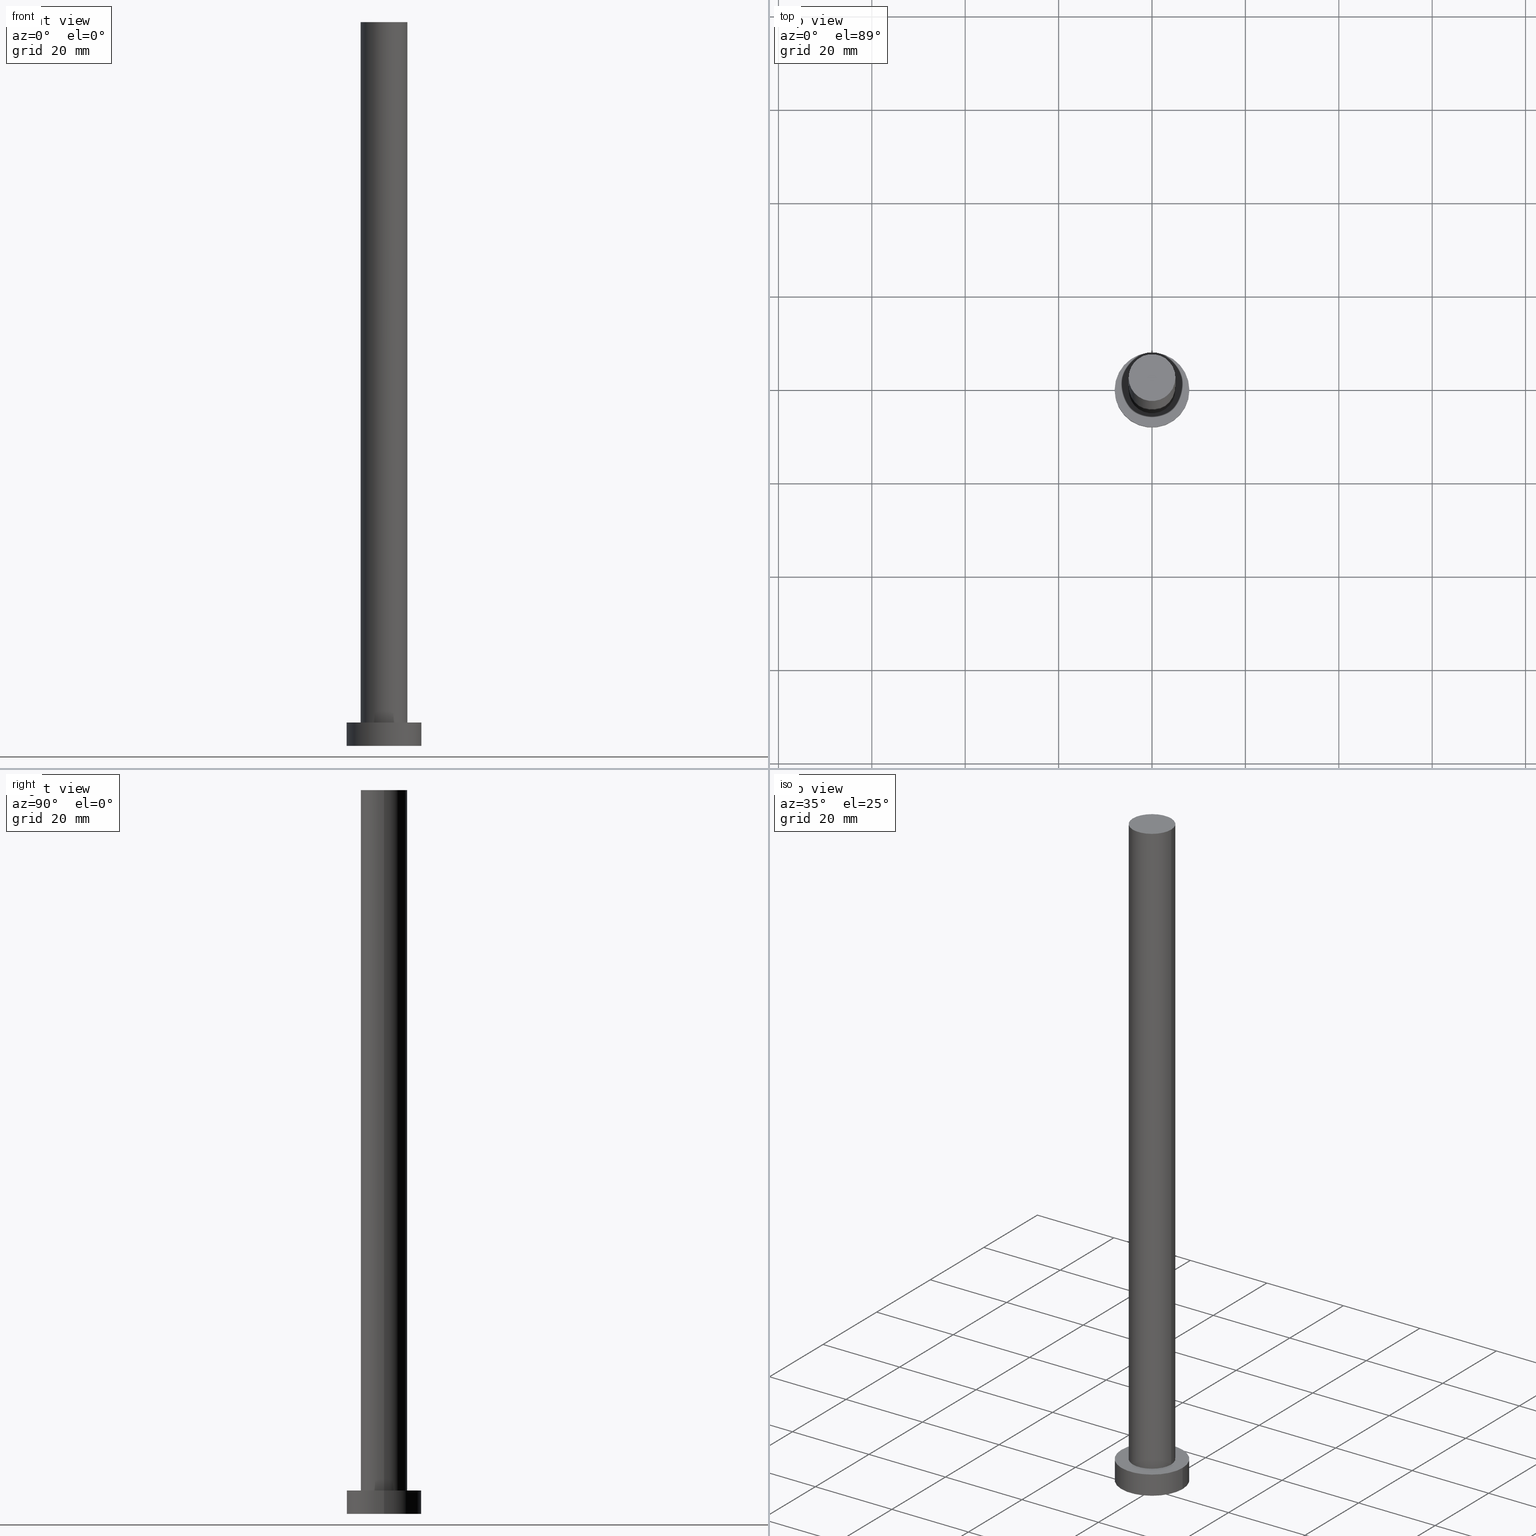
[diagram: canonical four-view strip — front | top / right | iso, engineering-drawing reading convention]
A machine part, canonical four-view strip (front | top / right | iso — engineering-drawing reading convention). The complete STEP part file that produces these views, byte-faithful:
ISO-10303-21;
HEADER;
FILE_DESCRIPTION (( 'STEP AP203' ),
    '1' );
FILE_NAME ('e26a.STEP',
    '2024-01-18T07:30:41',
    ( '' ),
    ( '' ),
    'SwSTEP 2.0',
    'SolidWorks 2019',
    '' );
FILE_SCHEMA (( 'CONFIG_CONTROL_DESIGN' ));
ENDSEC;

DATA;
#1 = ORIENTED_EDGE ( 'NONE', *, *, #177, .F. ) ;
#2 = VERTEX_POINT ( 'NONE', #18 ) ;
#3 = CARTESIAN_POINT ( 'NONE',  ( -8.000000000000000000, 0.000000000000000000, 0.000000000000000000 ) ) ;
#4 = DIRECTION ( 'NONE',  ( 1.000000000000000000, 0.000000000000000000, 0.000000000000000000 ) ) ;
#5 = CARTESIAN_POINT ( 'NONE',  ( 0.000000000000000000, 0.000000000000000000, 155.0000000000000000 ) ) ;
#6 = DIRECTION ( 'NONE',  ( 0.000000000000000000, 0.000000000000000000, 1.000000000000000000 ) ) ;
#7 = ADVANCED_FACE ( 'NONE', ( #202 ), #120, .F. ) ;
#8 = CIRCLE ( 'NONE', #148, 5.000000000000000888 ) ;
#9 = ORIENTED_EDGE ( 'NONE', *, *, #184, .F. ) ;
#10 = EDGE_CURVE ( 'NONE', #235, #16, #43, .T. ) ;
#11 = DATE_AND_TIME ( #132, #77 ) ;
#12 = DATE_TIME_ROLE ( 'creation_date' ) ;
#13 = AXIS2_PLACEMENT_3D ( 'NONE', #112, #94, #181 ) ;
#14 = CARTESIAN_POINT ( 'NONE',  ( 5.000000000000000888, 6.123233995736767268E-16, 155.0000000000000000 ) ) ;
#15 = ORIENTED_EDGE ( 'NONE', *, *, #118, .F. ) ;
#16 = VERTEX_POINT ( 'NONE', #161 ) ;
#17 = AXIS2_PLACEMENT_3D ( 'NONE', #22, #6, #24 ) ;
#18 = CARTESIAN_POINT ( 'NONE',  ( -5.000000000000000888, 0.000000000000000000, 5.000000000000000000 ) ) ;
#19 = DIRECTION ( 'NONE',  ( 0.000000000000000000, 0.000000000000000000, 1.000000000000000000 ) ) ;
#20 = CARTESIAN_POINT ( 'NONE',  ( -5.000000000000000888, 0.000000000000000000, 155.0000000000000000 ) ) ;
#21 = VECTOR ( 'NONE', #167, 1000.000000000000000 ) ;
#22 = CARTESIAN_POINT ( 'NONE',  ( 0.000000000000000000, 0.000000000000000000, 5.000000000000000000 ) ) ;
#23 = EDGE_CURVE ( 'NONE', #235, #143, #218, .T. ) ;
#24 = DIRECTION ( 'NONE',  ( 1.000000000000000000, 0.000000000000000000, 0.000000000000000000 ) ) ;
#25 = CARTESIAN_POINT ( 'NONE',  ( 0.000000000000000000, 0.000000000000000000, 5.000000000000000000 ) ) ;
#26 = CARTESIAN_POINT ( 'NONE',  ( 5.000000000000000888, 6.123233995736767268E-16, 5.000000000000000000 ) ) ;
#27 = CC_DESIGN_APPROVAL ( #238, ( #38 ) ) ;
#28 = ADVANCED_BREP_SHAPE_REPRESENTATION ( 'e26a', ( #186, #152 ), #111 ) ;
#29 = PERSON_AND_ORGANIZATION_ROLE ( 'classification_officer' ) ;
#30 = ORIENTED_EDGE ( 'NONE', *, *, #196, .T. ) ;
#31 = CALENDAR_DATE ( 2024, 18, 1 ) ;
#32 = EDGE_LOOP ( 'NONE', ( #122, #137, #62, #1 ) ) ;
#33 = EDGE_CURVE ( 'NONE', #16, #235, #182, .T. ) ;
#34 = PERSON_AND_ORGANIZATION ( #141, #163 ) ;
#35 = PERSON_AND_ORGANIZATION_ROLE ( 'creator' ) ;
#36 = CARTESIAN_POINT ( 'NONE',  ( 0.000000000000000000, 0.000000000000000000, 155.0000000000000000 ) ) ;
#37 = ADVANCED_FACE ( 'NONE', ( #101 ), #176, .T. ) ;
#38 = SECURITY_CLASSIFICATION ( '', '', #193 ) ;
#39 = PLANE ( 'NONE',  #138 ) ;
#40 = ORIENTED_EDGE ( 'NONE', *, *, #92, .T. ) ;
#41 = CC_DESIGN_PERSON_AND_ORGANIZATION_ASSIGNMENT ( #136, #211, ( #96 ) ) ;
#42 = ORIENTED_EDGE ( 'NONE', *, *, #254, .T. ) ;
#43 = CIRCLE ( 'NONE', #189, 5.000000000000000888 ) ;
#44 = VERTEX_POINT ( 'NONE', #253 ) ;
#45 = CARTESIAN_POINT ( 'NONE',  ( 8.000000000000000000, 9.797174393178825657E-16, 0.000000000000000000 ) ) ;
#46 = AXIS2_PLACEMENT_3D ( 'NONE', #25, #110, #224 ) ;
#47 = FACE_OUTER_BOUND ( 'NONE', #242, .T. ) ;
#48 = DIRECTION ( 'NONE',  ( 1.000000000000000000, 0.000000000000000000, 0.000000000000000000 ) ) ;
#49 = DIRECTION ( 'NONE',  ( 1.000000000000000000, 0.000000000000000000, 0.000000000000000000 ) ) ;
#50 = SHAPE_DEFINITION_REPRESENTATION ( #172, #28 ) ;
#51 = CC_DESIGN_APPROVAL ( #207, ( #96 ) ) ;
#52 = PERSON_AND_ORGANIZATION ( #141, #163 ) ;
#53 = CALENDAR_DATE ( 2024, 18, 1 ) ;
#54 = DATE_AND_TIME ( #53, #107 ) ;
#55 = CC_DESIGN_SECURITY_CLASSIFICATION ( #38, ( #96 ) ) ;
#56 = COORDINATED_UNIVERSAL_TIME_OFFSET ( 1, 0, .AHEAD. ) ;
#57 = CC_DESIGN_PERSON_AND_ORGANIZATION_ASSIGNMENT ( #129, #168, ( #96 ) ) ;
#58 = CARTESIAN_POINT ( 'NONE',  ( 0.000000000000000000, 0.000000000000000000, 5.000000000000000000 ) ) ;
#59 = LOCAL_TIME ( 8, 30, 41.00000000000000000, #114 ) ;
#60 = LINE ( 'NONE', #20, #21 ) ;
#61 = EDGE_CURVE ( 'NONE', #214, #88, #197, .T. ) ;
#62 = ORIENTED_EDGE ( 'NONE', *, *, #61, .T. ) ;
#63 = DIRECTION ( 'NONE',  ( 1.000000000000000000, 0.000000000000000000, 0.000000000000000000 ) ) ;
#64 = CLOSED_SHELL ( 'NONE', ( #113, #252, #244, #91, #7, #37, #246 ) ) ;
#65 = CIRCLE ( 'NONE', #17, 8.000000000000000000 ) ;
#66 = ORIENTED_EDGE ( 'NONE', *, *, #23, .T. ) ;
#67 = PRODUCT_RELATED_PRODUCT_CATEGORY ( 'detail', '', ( #78 ) ) ;
#68 =( NAMED_UNIT ( * ) SI_UNIT ( $, .STERADIAN. ) SOLID_ANGLE_UNIT ( ) );
#69 = DIRECTION ( 'NONE',  ( 1.000000000000000000, 0.000000000000000000, -0.000000000000000000 ) ) ;
#70 = VECTOR ( 'NONE', #226, 1000.000000000000000 ) ;
#71 = FACE_OUTER_BOUND ( 'NONE', #212, .T. ) ;
#72 = CC_DESIGN_DATE_AND_TIME_ASSIGNMENT ( #230, #12, ( #121 ) ) ;
#73 = UNCERTAINTY_MEASURE_WITH_UNIT (LENGTH_MEASURE( 1.000000000000000082E-05 ), #188, 'distance_accuracy_value', 'NONE');
#74 = CYLINDRICAL_SURFACE ( 'NONE', #46, 8.000000000000000000 ) ;
#75 = APPROVAL_ROLE ( '' ) ;
#76 = VECTOR ( 'NONE', #180, 1000.000000000000000 ) ;
#77 = LOCAL_TIME ( 8, 30, 41.00000000000000000, #56 ) ;
#78 = PRODUCT ( 'e26a', 'e26a', '', ( #130 ) ) ;
#79 = PERSON_AND_ORGANIZATION ( #141, #163 ) ;
#80 = AXIS2_PLACEMENT_3D ( 'NONE', #239, #199, #86 ) ;
#81 = DESIGN_CONTEXT ( 'detailed design', #215, 'design' ) ;
#82 = CARTESIAN_POINT ( 'NONE',  ( 0.000000000000000000, 0.000000000000000000, 155.0000000000000000 ) ) ;
#83 = DIRECTION ( 'NONE',  ( 1.000000000000000000, 0.000000000000000000, -0.000000000000000000 ) ) ;
#84 = AXIS2_PLACEMENT_3D ( 'NONE', #222, #19, #63 ) ;
#85 = CC_DESIGN_APPROVAL ( #241, ( #121 ) ) ;
#86 = DIRECTION ( 'NONE',  ( 1.000000000000000000, 0.000000000000000000, 0.000000000000000000 ) ) ;
#87 = EDGE_CURVE ( 'NONE', #44, #214, #255, .T. ) ;
#88 = VERTEX_POINT ( 'NONE', #3 ) ;
#89 = DIRECTION ( 'NONE',  ( -0.000000000000000000, -0.000000000000000000, -1.000000000000000000 ) ) ;
#90 = AXIS2_PLACEMENT_3D ( 'NONE', #36, #240, #159 ) ;
#91 = ADVANCED_FACE ( 'NONE', ( #116, #237 ), #39, .T. ) ;
#92 = EDGE_CURVE ( 'NONE', #16, #2, #60, .T. ) ;
#93 = DIRECTION ( 'NONE',  ( 0.000000000000000000, 0.000000000000000000, 1.000000000000000000 ) ) ;
#94 = DIRECTION ( 'NONE',  ( -0.000000000000000000, -0.000000000000000000, -1.000000000000000000 ) ) ;
#95 = AXIS2_PLACEMENT_3D ( 'NONE', #245, #227, #145 ) ;
#96 = PRODUCT_DEFINITION_FORMATION_WITH_SPECIFIED_SOURCE ( 'LIBOVOLN�', '', #78, .NOT_KNOWN. ) ;
#97 = APPROVAL_STATUS ( 'not_yet_approved' ) ;
#98 = CALENDAR_DATE ( 2024, 18, 1 ) ;
#99 = DIRECTION ( 'NONE',  ( 1.000000000000000000, 0.000000000000000000, 0.000000000000000000 ) ) ;
#100 = AXIS2_PLACEMENT_3D ( 'NONE', #109, #166, #4 ) ;
#101 = FACE_OUTER_BOUND ( 'NONE', #231, .T. ) ;
#102 = ORIENTED_EDGE ( 'NONE', *, *, #33, .F. ) ;
#103 = EDGE_LOOP ( 'NONE', ( #173, #30 ) ) ;
#104 = EDGE_LOOP ( 'NONE', ( #200, #9, #157, #117 ) ) ;
#105 = CARTESIAN_POINT ( 'NONE',  ( 8.000000000000000000, 9.797174393178825657E-16, 5.000000000000000000 ) ) ;
#106 = CARTESIAN_POINT ( 'NONE',  ( -8.000000000000000000, 0.000000000000000000, 5.000000000000000000 ) ) ;
#107 = LOCAL_TIME ( 8, 30, 41.00000000000000000, #154 ) ;
#108 = DIRECTION ( 'NONE',  ( -1.000000000000000000, 0.000000000000000000, 0.000000000000000000 ) ) ;
#109 = CARTESIAN_POINT ( 'NONE',  ( 0.000000000000000000, 0.000000000000000000, 5.000000000000000000 ) ) ;
#110 = DIRECTION ( 'NONE',  ( -0.000000000000000000, -0.000000000000000000, -1.000000000000000000 ) ) ;
#111 =( GEOMETRIC_REPRESENTATION_CONTEXT ( 3 ) GLOBAL_UNCERTAINTY_ASSIGNED_CONTEXT ( ( #73 ) ) GLOBAL_UNIT_ASSIGNED_CONTEXT ( ( #188, #147, #68 ) ) REPRESENTATION_CONTEXT ( 'NONE', 'WORKASPACE' ) );
#112 = CARTESIAN_POINT ( 'NONE',  ( 0.000000000000000000, 0.000000000000000000, 5.000000000000000000 ) ) ;
#113 = ADVANCED_FACE ( 'NONE', ( #71 ), #228, .T. ) ;
#114 = COORDINATED_UNIVERSAL_TIME_OFFSET ( 1, 0, .AHEAD. ) ;
#115 = PERSON_AND_ORGANIZATION ( #141, #163 ) ;
#116 = FACE_BOUND ( 'NONE', #194, .T. ) ;
#117 = ORIENTED_EDGE ( 'NONE', *, *, #118, .T. ) ;
#118 = EDGE_CURVE ( 'NONE', #88, #214, #204, .T. ) ;
#119 = EDGE_LOOP ( 'NONE', ( #15, #223 ) ) ;
#120 = PLANE ( 'NONE',  #155 ) ;
#121 = PRODUCT_DEFINITION ( 'NEZN�M�', '', #96, #81 ) ;
#122 = ORIENTED_EDGE ( 'NONE', *, *, #196, .F. ) ;
#123 = APPLICATION_PROTOCOL_DEFINITION ( 'international standard', 'config_control_design', 1994, #133 ) ;
#124 = AXIS2_PLACEMENT_3D ( 'NONE', #127, #125, #108 ) ;
#125 = DIRECTION ( 'NONE',  ( -0.000000000000000000, -0.000000000000000000, -1.000000000000000000 ) ) ;
#126 = LINE ( 'NONE', #209, #70 ) ;
#127 = CARTESIAN_POINT ( 'NONE',  ( 0.000000000000000000, 0.000000000000000000, 155.0000000000000000 ) ) ;
#128 = CIRCLE ( 'NONE', #100, 5.000000000000000888 ) ;
#129 = PERSON_AND_ORGANIZATION ( #141, #163 ) ;
#130 = MECHANICAL_CONTEXT ( 'NONE', #133, 'mechanical' ) ;
#131 = VERTEX_POINT ( 'NONE', #106 ) ;
#132 = CALENDAR_DATE ( 2024, 18, 1 ) ;
#133 = APPLICATION_CONTEXT ( 'configuration controlled 3d designs of mechanical parts and assemblies' ) ;
#134 = CC_DESIGN_PERSON_AND_ORGANIZATION_ASSIGNMENT ( #151, #35, ( #121 ) ) ;
#135 = APPROVAL_DATE_TIME ( #54, #207 ) ;
#136 = PERSON_AND_ORGANIZATION ( #141, #163 ) ;
#137 = ORIENTED_EDGE ( 'NONE', *, *, #87, .T. ) ;
#138 = AXIS2_PLACEMENT_3D ( 'NONE', #58, #220, #83 ) ;
#139 = ORIENTED_EDGE ( 'NONE', *, *, #171, .F. ) ;
#140 = ORIENTED_EDGE ( 'NONE', *, *, #33, .T. ) ;
#141 = PERSON ( 'NEUR�EN�', 'NEUR�EN�', 'NEUR�EN�', ('NEUR�EN�'), ('NEUR�EN�'), ('NEUR�EN�') ) ;
#142 = ORIENTED_EDGE ( 'NONE', *, *, #92, .F. ) ;
#143 = VERTEX_POINT ( 'NONE', #26 ) ;
#144 = LOCAL_TIME ( 8, 30, 41.00000000000000000, #195 ) ;
#145 = DIRECTION ( 'NONE',  ( 1.000000000000000000, 0.000000000000000000, 0.000000000000000000 ) ) ;
#146 = CARTESIAN_POINT ( 'NONE',  ( 0.000000000000000000, 0.000000000000000000, 0.000000000000000000 ) ) ;
#147 =( NAMED_UNIT ( * ) PLANE_ANGLE_UNIT ( ) SI_UNIT ( $, .RADIAN. ) );
#148 = AXIS2_PLACEMENT_3D ( 'NONE', #165, #149, #48 ) ;
#149 = DIRECTION ( 'NONE',  ( 0.000000000000000000, 0.000000000000000000, 1.000000000000000000 ) ) ;
#150 = CC_DESIGN_PERSON_AND_ORGANIZATION_ASSIGNMENT ( #34, #29, ( #38 ) ) ;
#151 = PERSON_AND_ORGANIZATION ( #141, #163 ) ;
#152 = AXIS2_PLACEMENT_3D ( 'NONE', #146, #225, #99 ) ;
#153 = APPROVAL_ROLE ( '' ) ;
#154 = COORDINATED_UNIVERSAL_TIME_OFFSET ( 1, 0, .AHEAD. ) ;
#155 = AXIS2_PLACEMENT_3D ( 'NONE', #179, #162, #201 ) ;
#156 = DATE_AND_TIME ( #31, #59 ) ;
#157 = ORIENTED_EDGE ( 'NONE', *, *, #177, .T. ) ;
#158 = DIRECTION ( 'NONE',  ( 0.000000000000000000, 0.000000000000000000, 1.000000000000000000 ) ) ;
#159 = DIRECTION ( 'NONE',  ( -1.000000000000000000, 0.000000000000000000, 0.000000000000000000 ) ) ;
#160 = CC_DESIGN_DATE_AND_TIME_ASSIGNMENT ( #11, #191, ( #38 ) ) ;
#161 = CARTESIAN_POINT ( 'NONE',  ( -5.000000000000000888, 0.000000000000000000, 155.0000000000000000 ) ) ;
#162 = DIRECTION ( 'NONE',  ( 0.000000000000000000, 0.000000000000000000, 1.000000000000000000 ) ) ;
#163 = ORGANIZATION ( 'NEUR�EN�', 'NEUR�EN�', '' ) ;
#164 = CC_DESIGN_PERSON_AND_ORGANIZATION_ASSIGNMENT ( #115, #232, ( #78 ) ) ;
#165 = CARTESIAN_POINT ( 'NONE',  ( 0.000000000000000000, 0.000000000000000000, 5.000000000000000000 ) ) ;
#166 = DIRECTION ( 'NONE',  ( 0.000000000000000000, 0.000000000000000000, 1.000000000000000000 ) ) ;
#167 = DIRECTION ( 'NONE',  ( -0.000000000000000000, -0.000000000000000000, -1.000000000000000000 ) ) ;
#168 = PERSON_AND_ORGANIZATION_ROLE ( 'creator' ) ;
#169 = ORIENTED_EDGE ( 'NONE', *, *, #254, .F. ) ;
#170 = CALENDAR_DATE ( 2024, 18, 1 ) ;
#171 = EDGE_CURVE ( 'NONE', #143, #2, #8, .T. ) ;
#172 = PRODUCT_DEFINITION_SHAPE ( 'NONE', 'NONE',  #121 ) ;
#173 = ORIENTED_EDGE ( 'NONE', *, *, #184, .T. ) ;
#174 = APPROVAL_STATUS ( 'not_yet_approved' ) ;
#175 = ORIENTED_EDGE ( 'NONE', *, *, #10, .F. ) ;
#176 = CYLINDRICAL_SURFACE ( 'NONE', #90, 5.000000000000000888 ) ;
#177 = EDGE_CURVE ( 'NONE', #131, #88, #126, .T. ) ;
#178 = DIRECTION ( 'NONE',  ( 1.000000000000000000, 0.000000000000000000, 0.000000000000000000 ) ) ;
#179 = CARTESIAN_POINT ( 'NONE',  ( 0.000000000000000000, 0.000000000000000000, 0.000000000000000000 ) ) ;
#180 = DIRECTION ( 'NONE',  ( -0.000000000000000000, -0.000000000000000000, -1.000000000000000000 ) ) ;
#181 = DIRECTION ( 'NONE',  ( -1.000000000000000000, 0.000000000000000000, 0.000000000000000000 ) ) ;
#182 = CIRCLE ( 'NONE', #80, 5.000000000000000888 ) ;
#183 = CIRCLE ( 'NONE', #192, 8.000000000000000000 ) ;
#184 = EDGE_CURVE ( 'NONE', #131, #44, #65, .T. ) ;
#185 = CARTESIAN_POINT ( 'NONE',  ( 5.000000000000000888, 6.123233995736767268E-16, 155.0000000000000000 ) ) ;
#186 = MANIFOLD_SOLID_BREP ( 'P�idat vysunut�m3', #64 ) ;
#187 = DIRECTION ( 'NONE',  ( 0.000000000000000000, 0.000000000000000000, 1.000000000000000000 ) ) ;
#188 =( LENGTH_UNIT ( ) NAMED_UNIT ( * ) SI_UNIT ( .MILLI., .METRE. ) );
#189 = AXIS2_PLACEMENT_3D ( 'NONE', #82, #158, #178 ) ;
#190 = FACE_OUTER_BOUND ( 'NONE', #32, .T. ) ;
#191 = DATE_TIME_ROLE ( 'classification_date' ) ;
#192 = AXIS2_PLACEMENT_3D ( 'NONE', #208, #93, #49 ) ;
#193 = SECURITY_CLASSIFICATION_LEVEL ( 'unclassified' ) ;
#194 = EDGE_LOOP ( 'NONE', ( #169, #139 ) ) ;
#195 = COORDINATED_UNIVERSAL_TIME_OFFSET ( 1, 0, .AHEAD. ) ;
#196 = EDGE_CURVE ( 'NONE', #44, #131, #183, .T. ) ;
#197 = CIRCLE ( 'NONE', #84, 8.000000000000000000 ) ;
#198 = ORIENTED_EDGE ( 'NONE', *, *, #171, .T. ) ;
#199 = DIRECTION ( 'NONE',  ( 0.000000000000000000, 0.000000000000000000, 1.000000000000000000 ) ) ;
#200 = ORIENTED_EDGE ( 'NONE', *, *, #87, .F. ) ;
#201 = DIRECTION ( 'NONE',  ( 1.000000000000000000, 0.000000000000000000, -0.000000000000000000 ) ) ;
#202 = FACE_OUTER_BOUND ( 'NONE', #119, .T. ) ;
#203 = CYLINDRICAL_SURFACE ( 'NONE', #13, 8.000000000000000000 ) ;
#204 = CIRCLE ( 'NONE', #95, 8.000000000000000000 ) ;
#205 = APPROVAL_PERSON_ORGANIZATION ( #52, #207, #153 ) ;
#206 = PLANE ( 'NONE',  #249 ) ;
#207 = APPROVAL ( #234, 'NEUR�EN�' ) ;
#208 = CARTESIAN_POINT ( 'NONE',  ( 0.000000000000000000, 0.000000000000000000, 5.000000000000000000 ) ) ;
#209 = CARTESIAN_POINT ( 'NONE',  ( -8.000000000000000000, 0.000000000000000000, 5.000000000000000000 ) ) ;
#210 = APPROVAL_DATE_TIME ( #213, #238 ) ;
#211 = PERSON_AND_ORGANIZATION_ROLE ( 'design_supplier' ) ;
#212 = EDGE_LOOP ( 'NONE', ( #175, #66, #198, #142 ) ) ;
#213 = DATE_AND_TIME ( #98, #236 ) ;
#214 = VERTEX_POINT ( 'NONE', #45 ) ;
#215 = APPLICATION_CONTEXT ( 'configuration controlled 3d designs of mechanical parts and assemblies' ) ;
#216 = APPROVAL_PERSON_ORGANIZATION ( #247, #238, #75 ) ;
#217 = APPROVAL_DATE_TIME ( #156, #241 ) ;
#218 = LINE ( 'NONE', #14, #248 ) ;
#219 = APPROVAL_PERSON_ORGANIZATION ( #79, #241, #233 ) ;
#220 = DIRECTION ( 'NONE',  ( 0.000000000000000000, 0.000000000000000000, 1.000000000000000000 ) ) ;
#221 = ORIENTED_EDGE ( 'NONE', *, *, #23, .F. ) ;
#222 = CARTESIAN_POINT ( 'NONE',  ( 0.000000000000000000, 0.000000000000000000, 0.000000000000000000 ) ) ;
#223 = ORIENTED_EDGE ( 'NONE', *, *, #61, .F. ) ;
#224 = DIRECTION ( 'NONE',  ( -1.000000000000000000, 0.000000000000000000, 0.000000000000000000 ) ) ;
#225 = DIRECTION ( 'NONE',  ( 0.000000000000000000, 0.000000000000000000, 1.000000000000000000 ) ) ;
#226 = DIRECTION ( 'NONE',  ( -0.000000000000000000, -0.000000000000000000, -1.000000000000000000 ) ) ;
#227 = DIRECTION ( 'NONE',  ( 0.000000000000000000, 0.000000000000000000, 1.000000000000000000 ) ) ;
#228 = CYLINDRICAL_SURFACE ( 'NONE', #124, 5.000000000000000888 ) ;
#229 = COORDINATED_UNIVERSAL_TIME_OFFSET ( 1, 0, .AHEAD. ) ;
#230 = DATE_AND_TIME ( #170, #144 ) ;
#231 = EDGE_LOOP ( 'NONE', ( #221, #102, #40, #42 ) ) ;
#232 = PERSON_AND_ORGANIZATION_ROLE ( 'design_owner' ) ;
#233 = APPROVAL_ROLE ( '' ) ;
#234 = APPROVAL_STATUS ( 'not_yet_approved' ) ;
#235 = VERTEX_POINT ( 'NONE', #185 ) ;
#236 = LOCAL_TIME ( 8, 30, 41.00000000000000000, #229 ) ;
#237 = FACE_OUTER_BOUND ( 'NONE', #103, .T. ) ;
#238 = APPROVAL ( #174, 'NEUR�EN�' ) ;
#239 = CARTESIAN_POINT ( 'NONE',  ( 0.000000000000000000, 0.000000000000000000, 155.0000000000000000 ) ) ;
#240 = DIRECTION ( 'NONE',  ( -0.000000000000000000, -0.000000000000000000, -1.000000000000000000 ) ) ;
#241 = APPROVAL ( #97, 'NEUR�EN�' ) ;
#242 = EDGE_LOOP ( 'NONE', ( #140, #250 ) ) ;
#243 = FACE_OUTER_BOUND ( 'NONE', #104, .T. ) ;
#244 = ADVANCED_FACE ( 'NONE', ( #243 ), #203, .T. ) ;
#245 = CARTESIAN_POINT ( 'NONE',  ( 0.000000000000000000, 0.000000000000000000, 0.000000000000000000 ) ) ;
#246 = ADVANCED_FACE ( 'NONE', ( #47 ), #206, .T. ) ;
#247 = PERSON_AND_ORGANIZATION ( #141, #163 ) ;
#248 = VECTOR ( 'NONE', #89, 1000.000000000000000 ) ;
#249 = AXIS2_PLACEMENT_3D ( 'NONE', #5, #187, #69 ) ;
#250 = ORIENTED_EDGE ( 'NONE', *, *, #10, .T. ) ;
#251 = APPLICATION_PROTOCOL_DEFINITION ( 'international standard', 'config_control_design', 1994, #215 ) ;
#252 = ADVANCED_FACE ( 'NONE', ( #190 ), #74, .T. ) ;
#253 = CARTESIAN_POINT ( 'NONE',  ( 8.000000000000000000, 9.797174393178825657E-16, 5.000000000000000000 ) ) ;
#254 = EDGE_CURVE ( 'NONE', #2, #143, #128, .T. ) ;
#255 = LINE ( 'NONE', #105, #76 ) ;
ENDSEC;
END-ISO-10303-21;
